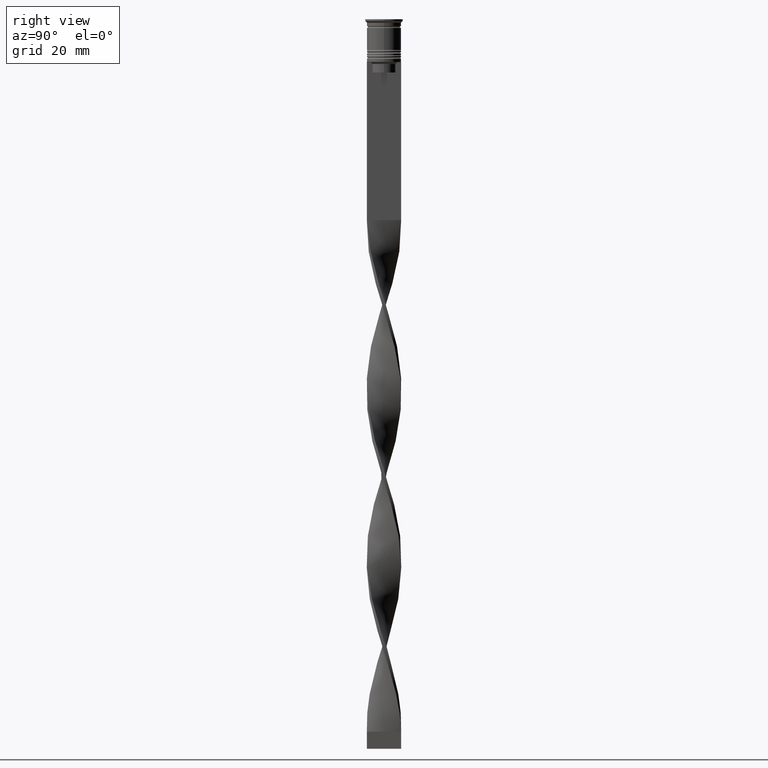
[diagram: clean part render]
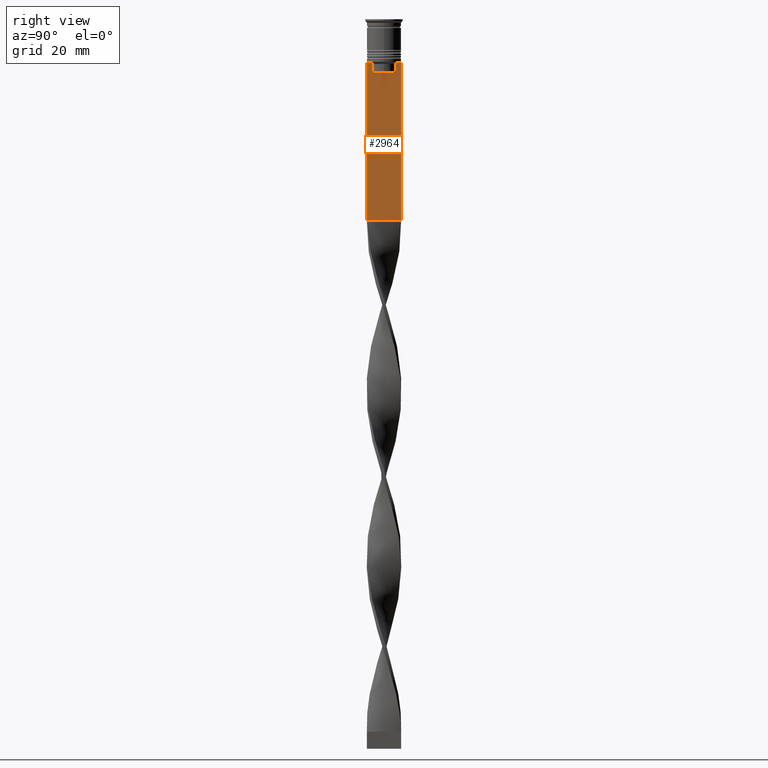
[diagram: same view with one face highlighted and labeled with its STEP entity id]
A machine part, right view. The second image highlights one B-rep face of the part: STEP entity #2964.
In plain terms, the highlighted planar face has unit normal (-1, 0, 0).
Its self-contained STEP definition (entity closure, byte-faithful):
#32 = FACE_OUTER_BOUND ( 'NONE', #2211, .T. ) ;
#63 = VERTEX_POINT ( 'NONE', #84 ) ;
#73 = CARTESIAN_POINT ( 'NONE',  ( 0.5000000000000000000, 3.531412678228260216, -12.83345231756357840 ) ) ;
#84 = CARTESIAN_POINT ( 'NONE',  ( 0.5000000000000000000, -4.874423042781575788, -12.50000000000000000 ) ) ;
#120 = CARTESIAN_POINT ( 'NONE',  ( 0.5000000000000000000, 3.363034344160045208, -13.00000000000000178 ) ) ;
#177 = ORIENTED_EDGE ( 'NONE', *, *, #3012, .T. ) ;
#183 = EDGE_CURVE ( 'NONE', #3336, #3377, #412, .T. ) ;
#202 = ORIENTED_EDGE ( 'NONE', *, *, #2556, .T. ) ;
#238 = B_SPLINE_CURVE_WITH_KNOTS ( 'NONE', 3,
 ( #3615, #3310, #241, #2721 ),
 .UNSPECIFIED., .F., .F.,
 ( 4, 4 ),
 ( 0.01632394437298965648, 0.01703543518243618576 ),
 .UNSPECIFIED. ) ;
#241 = CARTESIAN_POINT ( 'NONE',  ( 0.5000000000000000000, -3.699658232838647365, -12.66676999593996555 ) ) ;
#243 = VECTOR ( 'NONE', #259, 1000.000000000000000 ) ;
#247 = VERTEX_POINT ( 'NONE', #352 ) ;
#259 = DIRECTION ( 'NONE',  ( 0.000000000000000000, -1.000000000000000000, 0.000000000000000000 ) ) ;
#280 = LINE ( 'NONE', #2816, #2588 ) ;
#352 = CARTESIAN_POINT ( 'NONE',  ( 0.5000000000000000000, 5.000000000000000888, -58.50000000000000000 ) ) ;
#368 = VERTEX_POINT ( 'NONE', #2453 ) ;
#389 = CARTESIAN_POINT ( 'NONE',  ( 0.5000000000000000000, 4.874423042781575788, -12.50000000000000000 ) ) ;
#391 = VERTEX_POINT ( 'NONE', #3176 ) ;
#401 = DIRECTION ( 'NONE',  ( 0.000000000000000000, 0.000000000000000000, -1.000000000000000000 ) ) ;
#406 = EDGE_CURVE ( 'NONE', #3377, #2033, #2102, .T. ) ;
#412 = LINE ( 'NONE', #1670, #3030 ) ;
#421 = CARTESIAN_POINT ( 'NONE',  ( 0.5000000000000000000, -4.999999999999999112, -58.50000000000000000 ) ) ;
#468 = VERTEX_POINT ( 'NONE', #956 ) ;
#479 = VERTEX_POINT ( 'NONE', #2443 ) ;
#487 = EDGE_CURVE ( 'NONE', #3443, #479, #606, .T. ) ;
#501 = VERTEX_POINT ( 'NONE', #1575 ) ;
#535 = EDGE_CURVE ( 'NONE', #391, #63, #911, .T. ) ;
#603 = PLANE ( 'NONE',  #2783 ) ;
#606 = LINE ( 'NONE', #1848, #2185 ) ;
#792 = ORIENTED_EDGE ( 'NONE', *, *, #183, .T. ) ;
#911 = LINE ( 'NONE', #1822, #3791 ) ;
#956 = CARTESIAN_POINT ( 'NONE',  ( 0.5000000000000000000, -3.363034344160045652, -15.50000000000000000 ) ) ;
#1002 = DIRECTION ( 'NONE',  ( -0.000000000000000000, -0.000000000000000000, 1.000000000000000000 ) ) ;
#1021 = CARTESIAN_POINT ( 'NONE',  ( 0.5000000000000000000, 3.363034344160045208, -13.00000000000000178 ) ) ;
#1030 = CARTESIAN_POINT ( 'NONE',  ( 0.5000000000000000000, 3.399999999999998135, -15.50000000000000000 ) ) ;
#1056 = LINE ( 'NONE', #1378, #3679 ) ;
#1102 = ORIENTED_EDGE ( 'NONE', *, *, #487, .T. ) ;
#1166 = B_SPLINE_CURVE_WITH_KNOTS ( 'NONE', 3,
 ( #2856, #2008, #73, #1021 ),
 .UNSPECIFIED., .F., .F.,
 ( 4, 4 ),
 ( 0.006644825462451552783, 0.007355321358912435097 ),
 .UNSPECIFIED. ) ;
#1279 = CARTESIAN_POINT ( 'NONE',  ( 0.5000000000000000000, -4.999999999999999112, -2.450124378879110054 ) ) ;
#1378 = CARTESIAN_POINT ( 'NONE',  ( 0.5000000000000000000, -4.999999999999999112, -2.450124378879110054 ) ) ;
#1379 = LINE ( 'NONE', #2613, #2331 ) ;
#1381 = EDGE_CURVE ( 'NONE', #63, #2430, #1572, .T. ) ;
#1572 = LINE ( 'NONE', #3139, #3919 ) ;
#1575 = CARTESIAN_POINT ( 'NONE',  ( 0.5000000000000000000, -3.363034344160045208, -13.00000000000000178 ) ) ;
#1670 = CARTESIAN_POINT ( 'NONE',  ( 0.5000000000000000000, -4.999999999999999112, -12.50000000000000000 ) ) ;
#1690 = VECTOR ( 'NONE', #2934, 1000.000000000000000 ) ;
#1699 = LINE ( 'NONE', #1030, #1690 ) ;
#1707 = CARTESIAN_POINT ( 'NONE',  ( 0.5000000000000000000, -4.999999999999999112, -12.50000000000000000 ) ) ;
#1794 = ORIENTED_EDGE ( 'NONE', *, *, #3692, .T. ) ;
#1822 = CARTESIAN_POINT ( 'NONE',  ( 0.5000000000000000000, -4.999999999999999112, -12.50000000000000000 ) ) ;
#1827 = DIRECTION ( 'NONE',  ( 0.000000000000000000, 0.000000000000000000, 1.000000000000000000 ) ) ;
#1848 = CARTESIAN_POINT ( 'NONE',  ( 0.5000000000000000000, 3.363034344160045208, 0.000000000000000000 ) ) ;
#1885 = DIRECTION ( 'NONE',  ( 0.000000000000000000, -1.000000000000000000, 0.000000000000000000 ) ) ;
#1912 = DIRECTION ( 'NONE',  ( -1.000000000000000000, 0.000000000000000000, 0.000000000000000000 ) ) ;
#1926 = ORIENTED_EDGE ( 'NONE', *, *, #1381, .T. ) ;
#2008 = CARTESIAN_POINT ( 'NONE',  ( 0.5000000000000000000, 3.699657965831574913, -12.66677026074361301 ) ) ;
#2033 = VERTEX_POINT ( 'NONE', #3472 ) ;
#2102 = LINE ( 'NONE', #3892, #243 ) ;
#2185 = VECTOR ( 'NONE', #3079, 1000.000000000000000 ) ;
#2211 = EDGE_LOOP ( 'NONE', ( #2516, #3846, #1102, #177, #3189, #1794, #3109, #1926, #202, #3396, #3497, #792 ) ) ;
#2244 = LINE ( 'NONE', #421, #3352 ) ;
#2306 = EDGE_CURVE ( 'NONE', #468, #501, #280, .T. ) ;
#2331 = VECTOR ( 'NONE', #3828, 1000.000000000000000 ) ;
#2430 = VERTEX_POINT ( 'NONE', #1707 ) ;
#2443 = CARTESIAN_POINT ( 'NONE',  ( 0.5000000000000000000, 3.363034344160045652, -15.50000000000000000 ) ) ;
#2453 = CARTESIAN_POINT ( 'NONE',  ( 0.5000000000000000000, -4.999999999999999112, -58.50000000000000000 ) ) ;
#2516 = ORIENTED_EDGE ( 'NONE', *, *, #406, .T. ) ;
#2536 = EDGE_CURVE ( 'NONE', #368, #247, #2244, .T. ) ;
#2540 = DIRECTION ( 'NONE',  ( 0.000000000000000000, -1.000000000000000000, 0.000000000000000000 ) ) ;
#2556 = EDGE_CURVE ( 'NONE', #2430, #368, #1056, .T. ) ;
#2588 = VECTOR ( 'NONE', #1002, 1000.000000000000000 ) ;
#2591 = EDGE_CURVE ( 'NONE', #2033, #3443, #1166, .T. ) ;
#2613 = CARTESIAN_POINT ( 'NONE',  ( 0.5000000000000000000, 5.000000000000000888, -2.450124378879110054 ) ) ;
#2721 = CARTESIAN_POINT ( 'NONE',  ( 0.5000000000000000000, -3.867815921162742754, -12.50000000000000000 ) ) ;
#2783 = AXIS2_PLACEMENT_3D ( 'NONE', #1279, #1912, #1827 ) ;
#2816 = CARTESIAN_POINT ( 'NONE',  ( 0.5000000000000000000, -3.363034344160045208, 0.000000000000000000 ) ) ;
#2856 = CARTESIAN_POINT ( 'NONE',  ( 0.5000000000000000000, 3.867815921162742754, -12.50000000000000000 ) ) ;
#2934 = DIRECTION ( 'NONE',  ( 0.000000000000000000, -1.000000000000000000, 0.000000000000000000 ) ) ;
#2964 = ADVANCED_FACE ( 'NONE', ( #32 ), #603, .F. ) ;
#3012 = EDGE_CURVE ( 'NONE', #479, #468, #1699, .T. ) ;
#3030 = VECTOR ( 'NONE', #2540, 1000.000000000000000 ) ;
#3056 = DIRECTION ( 'NONE',  ( 0.000000000000000000, -1.000000000000000000, 0.000000000000000000 ) ) ;
#3079 = DIRECTION ( 'NONE',  ( 0.000000000000000000, 0.000000000000000000, -1.000000000000000000 ) ) ;
#3109 = ORIENTED_EDGE ( 'NONE', *, *, #535, .T. ) ;
#3139 = CARTESIAN_POINT ( 'NONE',  ( 0.5000000000000000000, -4.999999999999999112, -12.50000000000000000 ) ) ;
#3176 = CARTESIAN_POINT ( 'NONE',  ( 0.5000000000000000000, -3.867815921162742754, -12.50000000000000000 ) ) ;
#3189 = ORIENTED_EDGE ( 'NONE', *, *, #2306, .T. ) ;
#3310 = CARTESIAN_POINT ( 'NONE',  ( 0.5000000000000000000, -3.531412985305424801, -12.83345201382502765 ) ) ;
#3334 = CARTESIAN_POINT ( 'NONE',  ( 0.5000000000000000000, 5.000000000000000888, -12.50000000000000000 ) ) ;
#3336 = VERTEX_POINT ( 'NONE', #3334 ) ;
#3352 = VECTOR ( 'NONE', #3842, 1000.000000000000000 ) ;
#3377 = VERTEX_POINT ( 'NONE', #389 ) ;
#3396 = ORIENTED_EDGE ( 'NONE', *, *, #2536, .T. ) ;
#3443 = VERTEX_POINT ( 'NONE', #120 ) ;
#3472 = CARTESIAN_POINT ( 'NONE',  ( 0.5000000000000000000, 3.867815921162742754, -12.50000000000000000 ) ) ;
#3497 = ORIENTED_EDGE ( 'NONE', *, *, #3814, .F. ) ;
#3615 = CARTESIAN_POINT ( 'NONE',  ( 0.5000000000000000000, -3.363034344160045208, -13.00000000000000178 ) ) ;
#3679 = VECTOR ( 'NONE', #401, 1000.000000000000000 ) ;
#3692 = EDGE_CURVE ( 'NONE', #501, #391, #238, .T. ) ;
#3791 = VECTOR ( 'NONE', #3056, 1000.000000000000000 ) ;
#3814 = EDGE_CURVE ( 'NONE', #3336, #247, #1379, .T. ) ;
#3828 = DIRECTION ( 'NONE',  ( 0.000000000000000000, 0.000000000000000000, -1.000000000000000000 ) ) ;
#3842 = DIRECTION ( 'NONE',  ( 0.000000000000000000, 1.000000000000000000, 0.000000000000000000 ) ) ;
#3846 = ORIENTED_EDGE ( 'NONE', *, *, #2591, .T. ) ;
#3892 = CARTESIAN_POINT ( 'NONE',  ( 0.5000000000000000000, -4.999999999999999112, -12.50000000000000000 ) ) ;
#3919 = VECTOR ( 'NONE', #1885, 1000.000000000000000 ) ;